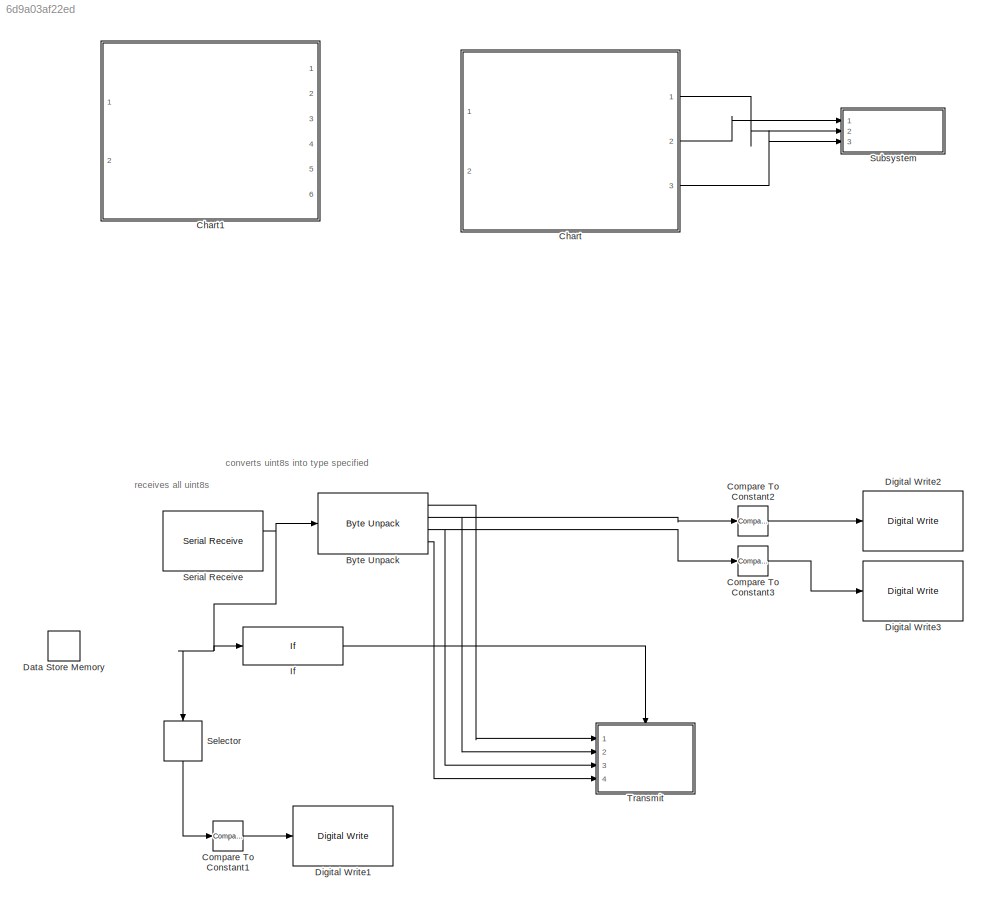
MODEL slx_6d9a03af22ed
KIND model
CONFIG AbsTol = auto
CONFIG EnableMultiTasking = on
CONFIG FixedStep = 1e-3
CONFIG MaxStep = auto
CONFIG MinStep = auto
CONFIG RelTol = 1e-3
CONFIG SampleTimeConstraint = Unconstrained
CONFIG Solver = FixedStepAuto
CONFIG SolverName = FixedStepAuto
CONFIG StartTime = 0.0
CONFIG StopTime = 10.0
BLOCK [Reference] Byte Unpack  REF=etargetslib/Byte Unpack
  Ports = [1, 4]
  SourceBlock = etargetslib/Byte Unpack
  SourceProductBaseCode = ME
  SourceType = Byte Unpack
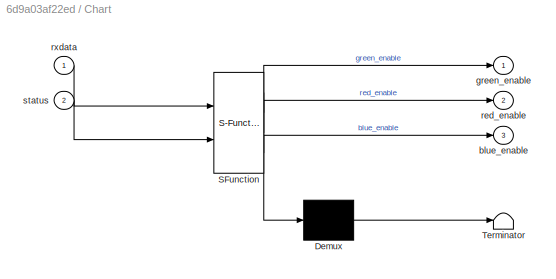
BLOCK [SubSystem] Chart
  Commented = on
  ErrorFcn = Stateflow.Translate.translate
  PermitHierarchicalResolution = ExplicitOnly
  Ports = [2, 3]
  RequestExecContextInheritance = off
  SFBlockType = Chart
  TreatAsAtomicUnit = on
BLOCK [Demux] Chart/ Demux 
  Outputs = 1
  Ports = [1, 1]
BLOCK [S-Function] Chart/ SFunction 
  EnableBusSupport = on
  FunctionName = sf_sfun
  PortCounts = [2 4]
  Ports = [2, 4]
  SFcnIsStateOwnerBlock = off
  SFunctionDeploymentMode = off
  Tag = Stateflow S-Function 3
BLOCK [Terminator] Chart/ Terminator 
BLOCK [Outport] Chart/blue_enable
  Port = 3
BLOCK [Outport] Chart/green_enable
BLOCK [Outport] Chart/red_enable
  Port = 2
BLOCK [Inport] Chart/rxdata
BLOCK [Inport] Chart/status
  Port = 2
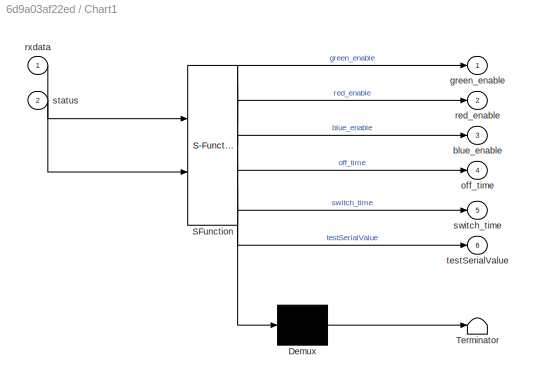
BLOCK [SubSystem] Chart1
  Commented = on
  ErrorFcn = Stateflow.Translate.translate
  PermitHierarchicalResolution = ExplicitOnly
  Ports = [2, 6]
  RequestExecContextInheritance = off
  SFBlockType = Chart
  TreatAsAtomicUnit = on
BLOCK [Demux] Chart1/ Demux 
  Outputs = 1
  Ports = [1, 1]
BLOCK [S-Function] Chart1/ SFunction 
  EnableBusSupport = on
  FunctionName = sf_sfun
  PortCounts = [2 7]
  Ports = [2, 7]
  SFcnIsStateOwnerBlock = off
  SFunctionDeploymentMode = off
  Tag = Stateflow S-Function 1
BLOCK [Terminator] Chart1/ Terminator 
BLOCK [Outport] Chart1/blue_enable
  Port = 3
BLOCK [Outport] Chart1/green_enable
BLOCK [Outport] Chart1/off_time
  Port = 4
BLOCK [Outport] Chart1/red_enable
  Port = 2
BLOCK [Inport] Chart1/rxdata
BLOCK [Inport] Chart1/status
  Port = 2
BLOCK [Outport] Chart1/switch_time
  Port = 5
BLOCK [Outport] Chart1/testSerialValue
  Port = 6
BLOCK [Reference] Compare To Constant1  REF=simulink/Logic and Bit
Operations/Compare
To Constant
  Ports = [1, 1]
  SourceBlock = simulink/Logic and Bit\nOperations/Compare\nTo Constant
  SourceProductBaseCode = SL
  SourceType = Compare To Constant
BLOCK [Reference] Compare To Constant2  REF=simulink/Logic and Bit
Operations/Compare
To Constant
  Ports = [1, 1]
  SourceBlock = simulink/Logic and Bit\nOperations/Compare\nTo Constant
  SourceProductBaseCode = SL
  SourceType = Compare To Constant
BLOCK [Reference] Compare To Constant3  REF=simulink/Logic and Bit
Operations/Compare
To Constant
  Ports = [1, 1]
  SourceBlock = simulink/Logic and Bit\nOperations/Compare\nTo Constant
  SourceProductBaseCode = SL
  SourceType = Compare To Constant
BLOCK [DataStoreMemory] Data Store Memory
  DataStoreName = message
  Dimensions = [10 1]
  ReadBeforeWriteMsg = warning
  ShowAdditionalParam = off
  WriteAfterReadMsg = warning
  WriteAfterWriteMsg = warning
BLOCK [Reference] Digital Write1  REF=frdmk64flib/Digital Write
  Ports = [1]
  SourceBlock = frdmk64flib/Digital Write
  SourceProductBaseCode = EC_FRDM_K64F
  SourceType = freedomk64f.DigitalWrite
BLOCK [Reference] Digital Write2  REF=frdmk64flib/Digital Write
  Ports = [1]
  SourceBlock = frdmk64flib/Digital Write
  SourceProductBaseCode = EC_FRDM_K64F
  SourceType = freedomk64f.DigitalWrite
BLOCK [Reference] Digital Write3  REF=frdmk64flib/Digital Write
  Ports = [1]
  SourceBlock = frdmk64flib/Digital Write
  SourceProductBaseCode = EC_FRDM_K64F
  SourceType = freedomk64f.DigitalWrite
BLOCK [If] If
  IfExpression = u1(1) > 0
  Ports = [1, 1]
  ShowElse = off
BLOCK [Selector] Selector
  IndexOptions = Index vector (dialog)
  Indices = [1]
  NameLocation = left
  OutputSizes = 1
  Ports = [1, 1]
BLOCK [Reference] Serial Receive  REF=frdmk64flib/Serial Receive
  Ports = [0, 2]
  SourceBlock = frdmk64flib/Serial Receive
  SourceProductBaseCode = EC_FRDM_K64F
  SourceType = freedomk64f.SCIRead
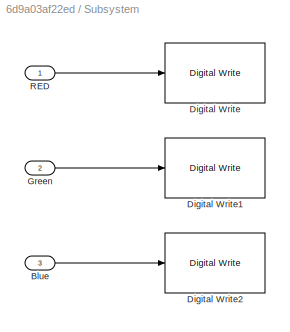
BLOCK [SubSystem] Subsystem
  Commented = on
  Ports = [3]
  RequestExecContextInheritance = off
BLOCK [Inport] Subsystem/Blue
  Port = 3
BLOCK [Reference] Subsystem/Digital Write  REF=frdmk64flib/Digital Write
  Ports = [1]
  SourceBlock = frdmk64flib/Digital Write
  SourceProductBaseCode = EC_FRDM_K64F
  SourceType = freedomk64f.DigitalWrite
BLOCK [Reference] Subsystem/Digital Write1  REF=frdmk64flib/Digital Write
  Ports = [1]
  SourceBlock = frdmk64flib/Digital Write
  SourceProductBaseCode = EC_FRDM_K64F
  SourceType = freedomk64f.DigitalWrite
BLOCK [Reference] Subsystem/Digital Write2  REF=frdmk64flib/Digital Write
  Ports = [1]
  SourceBlock = frdmk64flib/Digital Write
  SourceProductBaseCode = EC_FRDM_K64F
  SourceType = freedomk64f.DigitalWrite
BLOCK [Inport] Subsystem/Green
  Port = 2
BLOCK [Inport] Subsystem/RED
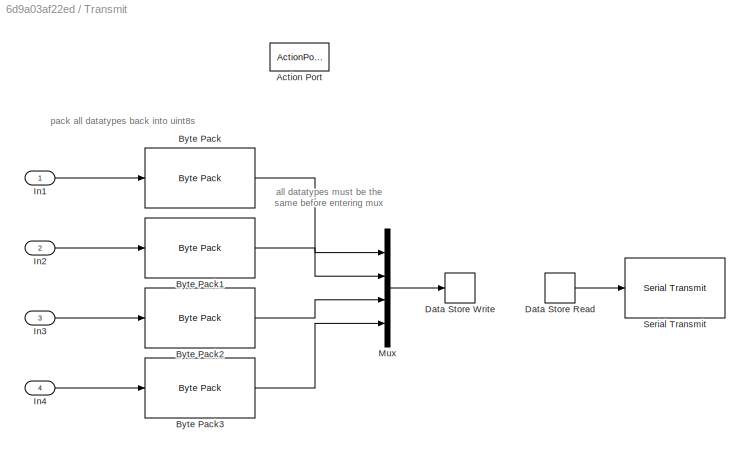
BLOCK [SubSystem] Transmit
  Ports = [4, 0, 0, 0, 0, 0, 0, 1]
  RequestExecContextInheritance = off
BLOCK [ActionPort] Transmit/Action Port
  ActionPortLabel = if(u1(1) > 0)
BLOCK [Reference] Transmit/Byte Pack  REF=etargetslib/Byte Pack
  Ports = [1, 1]
  SourceBlock = etargetslib/Byte Pack
  SourceProductBaseCode = ME
  SourceType = Byte pack
BLOCK [Reference] Transmit/Byte Pack1  REF=etargetslib/Byte Pack
  Ports = [1, 1]
  SourceBlock = etargetslib/Byte Pack
  SourceProductBaseCode = ME
  SourceType = Byte pack
BLOCK [Reference] Transmit/Byte Pack2  REF=etargetslib/Byte Pack
  Ports = [1, 1]
  SourceBlock = etargetslib/Byte Pack
  SourceProductBaseCode = ME
  SourceType = Byte pack
BLOCK [Reference] Transmit/Byte Pack3  REF=etargetslib/Byte Pack
  Ports = [1, 1]
  SourceBlock = etargetslib/Byte Pack
  SourceProductBaseCode = ME
  SourceType = Byte pack
BLOCK [DataStoreRead] Transmit/Data Store Read
  DataStoreName = message
  Ports = [0, 1]
BLOCK [DataStoreWrite] Transmit/Data Store Write
  DataStoreElements = message(:)
  DataStoreName = message
  Ports = [1]
BLOCK [Inport] Transmit/In1
BLOCK [Inport] Transmit/In2
  Port = 2
BLOCK [Inport] Transmit/In3
  Port = 3
BLOCK [Inport] Transmit/In4
  Port = 4
BLOCK [Mux] Transmit/Mux
  DisplayOption = bar
  Ports = [4, 1]
BLOCK [Reference] Transmit/Serial Transmit  REF=frdmk64flib/Serial Transmit
  Ports = [1]
  SourceBlock = frdmk64flib/Serial Transmit
  SourceProductBaseCode = EC_FRDM_K64F
  SourceType = freedomk64f.SCIWrite
ANNOTATION (root): converts uint8s into type specified
ANNOTATION (root): receives all uint8s
ANNOTATION Transmit: all datatypes must be the same before entering mux
ANNOTATION Transmit: pack all datatypes back into uint8s
LINE Byte Unpack:1 -> Transmit:1
NET Byte Unpack:2 -> Compare To Constant2:1, Transmit:2
NET Byte Unpack:3 -> Compare To Constant3:1, Transmit:3
LINE Byte Unpack:4 -> Transmit:4
LINE Chart:1 -> Subsystem:2
LINE Chart:2 -> Subsystem:1
LINE Chart:3 -> Subsystem:3
LINE Compare To Constant1:1 -> Digital Write1:1
LINE Compare To Constant2:1 -> Digital Write2:1
LINE Compare To Constant3:1 -> Digital Write3:1
LINE If:1 -> Transmit:ifaction
LINE Selector:1 -> Compare To Constant1:1
NET Serial Receive:1 -> Byte Unpack:1, If:1, Selector:1
LINE Subsystem/Blue:1 -> Subsystem/Digital Write2:1
LINE Subsystem/Green:1 -> Subsystem/Digital Write1:1
LINE Subsystem/RED:1 -> Subsystem/Digital Write:1
LINE Transmit/Byte Pack1:1 -> Transmit/Mux:2
LINE Transmit/Byte Pack2:1 -> Transmit/Mux:3
LINE Transmit/Byte Pack3:1 -> Transmit/Mux:4
LINE Transmit/Byte Pack:1 -> Transmit/Mux:1
LINE Transmit/Data Store Read:1 -> Transmit/Serial Transmit:1
LINE Transmit/In1:1 -> Transmit/Byte Pack:1
LINE Transmit/In2:1 -> Transmit/Byte Pack1:1
LINE Transmit/In3:1 -> Transmit/Byte Pack2:1
LINE Transmit/In4:1 -> Transmit/Byte Pack3:1
LINE Transmit/Mux:1 -> Transmit/Data Store Write:1
note: NET lines group one-source signal fan-out (src -> all destinations, sorted); 1:1 wires keep LINE
CHART Chart1 states=3 transitions=7
  STATE_LABEL "SET_PARAM\nentry:\nred_enable =rxdata(3);\ngreen_enable=rxdata(4);\nblue_enable=rxdata(5);\noff_time= typecast(rxdata(6:9),'single');\nswitch_time= typecast(rxdata(10:11),'uint16')\ntestSerialValue=rxdata(3);"
  STATE_LABEL 'INITIAL\nentry:\nred_enable=0;\ngreen_enable=0;\nblue_enable=0;\noff_time=0.5; %in seconds\nswitch_time=200% in milliseconds'
  STATE_LABEL 'STANDBY\n%wait'
CHART Chart states=4 transitions=6
  STATE_LABEL 'INITIAL\nentry:\nred_enable=0;\ngreen_enable=0;\nblue_enable=0;\nfoo=0;'
  STATE_LABEL 'STANDBY\n%wait\nentry:\nred_enable=0;\ngreen_enable=0;\nblue_enable=0;'
  STATE_LABEL 'Received\nentry:\nred_enable=1;'
  STATE_LABEL 'Received1\nentry:\nblue_enable=1;'
CHART  states=0 transitions=0
CHART  states=0 transitions=0
